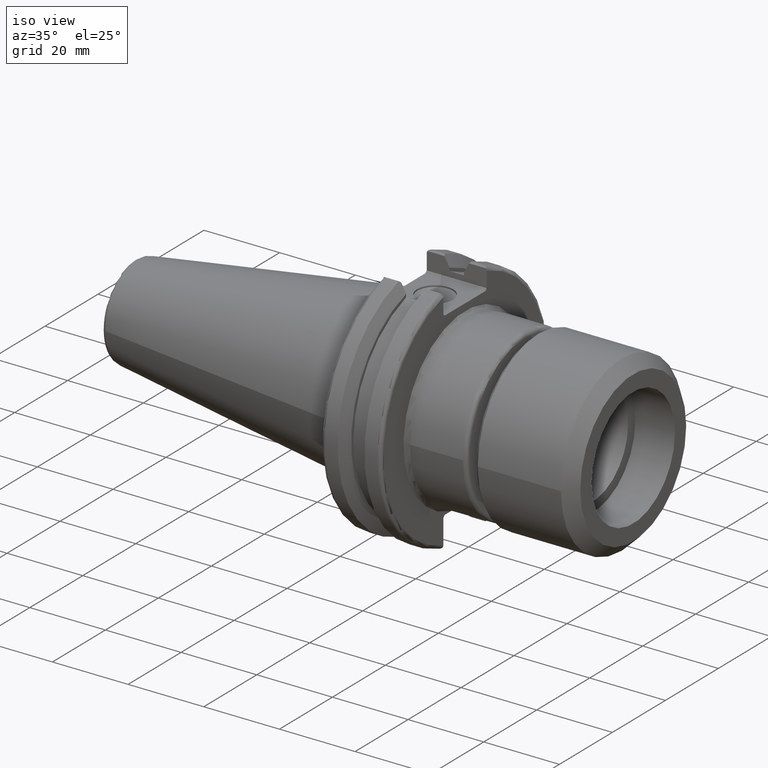
[diagram: clean part render]
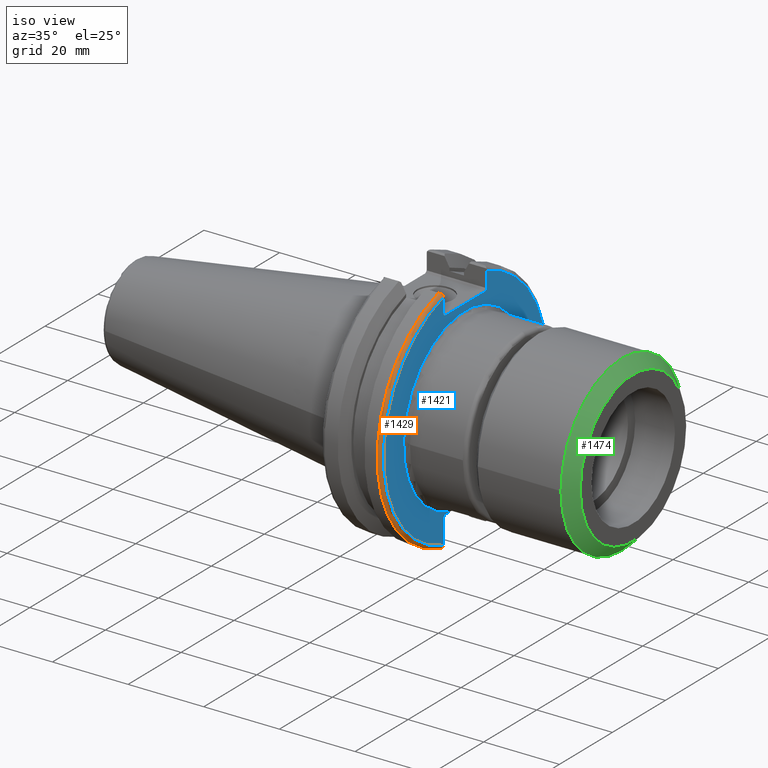
[diagram: same view with three faces highlighted in distinct colors, each labeled with its STEP entity id]
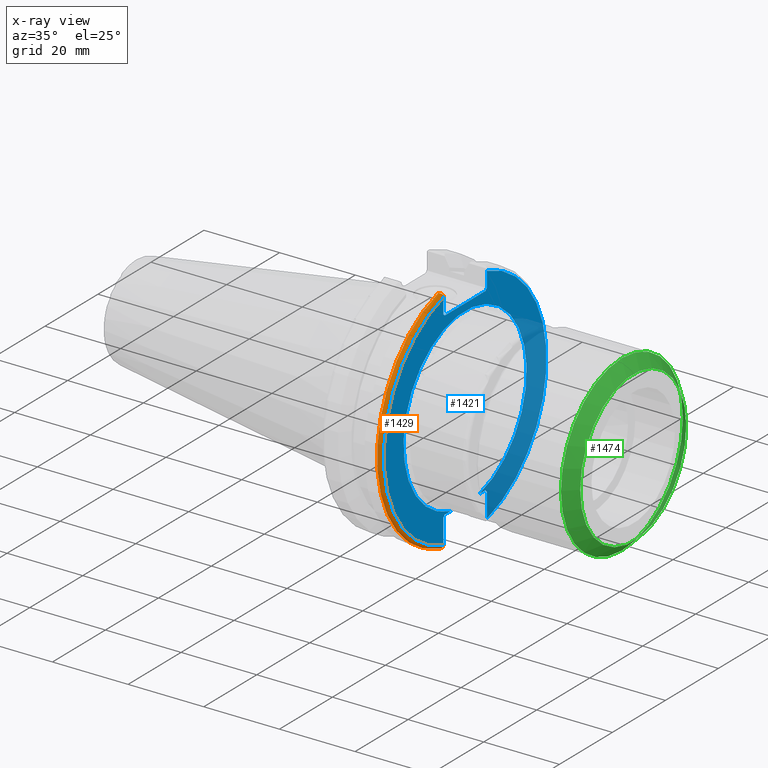
[diagram: x-ray of the same camera — body ghosted, the three highlighted faces saturated]
A machine part, iso view with three faces highlighted in distinct colors.
The next image is the same camera in x-ray (body ghosted, the three faces saturated) — at least one of them is partly hidden behind the body in this view.
Their STEP definitions:

[orange] entity #1429 — the highlighted toroidal blend (fillet) surface has major radius 30.75 mm and minor (blend) radius 1 mm.
#284=B_SPLINE_CURVE_WITH_KNOTS('',3,(#2402,#2403,#2404,#2405,#2406,#2407),
 .UNSPECIFIED.,.F.,.F.,(4,2,4),(0.097738363091569,0.112311108149119,0.150804350305566),
 .UNSPECIFIED.);
#285=B_SPLINE_CURVE_WITH_KNOTS('',3,(#2409,#2410,#2411,#2412,#2413,#2414),
 .UNSPECIFIED.,.F.,.F.,(4,2,4),(0.452741154494497,0.491581665024872,0.505824174364156),
 .UNSPECIFIED.);
#286=B_SPLINE_CURVE_WITH_KNOTS('',3,(#2416,#2417,#2418,#2419,#2420,#2421,
#2422,#2423),.UNSPECIFIED.,.F.,.F.,(4,2,2,4),(-0.104180282751877,-0.0729784742461446,
-0.0343524753874984,0.),.UNSPECIFIED.);
#287=B_SPLINE_CURVE_WITH_KNOTS('',3,(#2426,#2427,#2428,#2429,#2430,#2431,
#2432,#2433),.UNSPECIFIED.,.F.,.F.,(4,2,2,4),(0.,0.0343524753874978,0.0729784742461449,
0.104180282751877),.UNSPECIFIED.);
#538=FACE_OUTER_BOUND('',#617,.T.);
#617=EDGE_LOOP('',(#1161,#1162,#1163,#1164,#1165,#1166));
#695=CIRCLE('',#1628,30.75);
#705=CIRCLE('',#1646,31.75);
#772=VERTEX_POINT('',#2284);
#773=VERTEX_POINT('',#2286);
#805=VERTEX_POINT('',#2401);
#806=VERTEX_POINT('',#2408);
#807=VERTEX_POINT('',#2415);
#808=VERTEX_POINT('',#2424);
#901=EDGE_CURVE('',#773,#772,#695,.T.);
#941=EDGE_CURVE('',#805,#773,#284,.T.);
#942=EDGE_CURVE('',#772,#806,#285,.T.);
#943=EDGE_CURVE('',#806,#807,#286,.T.);
#944=EDGE_CURVE('',#807,#808,#705,.T.);
#945=EDGE_CURVE('',#808,#805,#287,.T.);
#1161=ORIENTED_EDGE('',*,*,#941,.T.);
#1162=ORIENTED_EDGE('',*,*,#901,.T.);
#1163=ORIENTED_EDGE('',*,*,#942,.T.);
#1164=ORIENTED_EDGE('',*,*,#943,.T.);
#1165=ORIENTED_EDGE('',*,*,#944,.T.);
#1166=ORIENTED_EDGE('',*,*,#945,.T.);
#1402=TOROIDAL_SURFACE('',#1645,30.75,1.);
#1429=ADVANCED_FACE('',(#538),#1402,.T.);
#1628=AXIS2_PLACEMENT_3D('',#2287,#1858,#1859);
#1645=AXIS2_PLACEMENT_3D('',#2400,#1914,#1915);
#1646=AXIS2_PLACEMENT_3D('',#2425,#1916,#1917);
#1858=DIRECTION('center_axis',(-1.,0.,0.));
#1859=DIRECTION('ref_axis',(0.,-1.,1.60812264967664E-16));
#1914=DIRECTION('center_axis',(1.,0.,0.));
#1915=DIRECTION('ref_axis',(0.,0.,-1.));
#1916=DIRECTION('center_axis',(1.,0.,0.));
#1917=DIRECTION('ref_axis',(0.,-1.,1.60812264967664E-16));
#2284=CARTESIAN_POINT('',(19.05,-8.19,29.6392712461019));
#2286=CARTESIAN_POINT('',(19.05,-8.19,-29.6392712461019));
#2287=CARTESIAN_POINT('Origin',(19.05,0.,0.));
#2400=CARTESIAN_POINT('Origin',(18.05,0.,0.));
#2401=CARTESIAN_POINT('',(18.9058722749097,-8.19,-30.1755016258903));
#2402=CARTESIAN_POINT('Ctrl Pts',(18.9058722749097,-8.19,-30.1755016258903));
#2403=CARTESIAN_POINT('Ctrl Pts',(18.9324477233044,-8.19,-30.1299319366157));
#2404=CARTESIAN_POINT('Ctrl Pts',(18.9550700364447,-8.19,-30.0829389905409));
#2405=CARTESIAN_POINT('Ctrl Pts',(19.0210043632013,-8.19,-29.9188002007263));
#2406=CARTESIAN_POINT('Ctrl Pts',(19.05,-8.19,-29.76758205329));
#2407=CARTESIAN_POINT('Ctrl Pts',(19.05,-8.19,-29.6392712461019));
#2408=CARTESIAN_POINT('',(18.9058722749097,-8.19,30.1755016258903));
#2409=CARTESIAN_POINT('Ctrl Pts',(19.05,-8.19,29.6392712461019));
#2410=CARTESIAN_POINT('Ctrl Pts',(19.05,-8.19,29.7687396145364));
#2411=CARTESIAN_POINT('Ctrl Pts',(19.020485567083,-8.19,29.9212724384851));
#2412=CARTESIAN_POINT('Ctrl Pts',(18.9539643471756,-8.19,30.0852355256475));
#2413=CARTESIAN_POINT('Ctrl Pts',(18.9318163728133,-8.19,30.131014531546));
#2414=CARTESIAN_POINT('Ctrl Pts',(18.9058722749097,-8.19,30.1755016258903));
#2415=CARTESIAN_POINT('',(18.05,-8.67204822802685,30.5427254764662));
#2416=CARTESIAN_POINT('Ctrl Pts',(18.9058722749097,-8.19,30.1755016258903));
#2417=CARTESIAN_POINT('Ctrl Pts',(18.8574463042989,-8.2703682833078,30.2367261024977));
#2418=CARTESIAN_POINT('Ctrl Pts',(18.7926702662319,-8.34909446036477,30.2966996242308));
#2419=CARTESIAN_POINT('Ctrl Pts',(18.6396724190507,-8.48862804755884,30.4029961692546));
#2420=CARTESIAN_POINT('Ctrl Pts',(18.5184414294771,-8.56482138642532,30.4610401774263));
#2421=CARTESIAN_POINT('Ctrl Pts',(18.2983170433775,-8.6471881193939,30.5237870709558));
#2422=CARTESIAN_POINT('Ctrl Pts',(18.1645082512917,-8.67204822802685,30.5427254764662));
#2423=CARTESIAN_POINT('Ctrl Pts',(18.05,-8.67204822802685,30.5427254764662));
#2424=CARTESIAN_POINT('',(18.05,-8.67204822802686,-30.5427254764662));
#2425=CARTESIAN_POINT('Origin',(18.05,0.,0.));
#2426=CARTESIAN_POINT('Ctrl Pts',(18.05,-8.67204822802685,-30.5427254764662));
#2427=CARTESIAN_POINT('Ctrl Pts',(18.1645082512917,-8.67204822802685,-30.5427254764662));
#2428=CARTESIAN_POINT('Ctrl Pts',(18.2983170433775,-8.6471881193939,-30.5237870709558));
#2429=CARTESIAN_POINT('Ctrl Pts',(18.5184414294771,-8.56482138642532,-30.4610401774263));
#2430=CARTESIAN_POINT('Ctrl Pts',(18.6396724190507,-8.48862804755883,-30.4029961692546));
#2431=CARTESIAN_POINT('Ctrl Pts',(18.7926702662319,-8.34909446036477,-30.2966996242308));
#2432=CARTESIAN_POINT('Ctrl Pts',(18.8574463042989,-8.2703682833078,-30.2367261024977));
#2433=CARTESIAN_POINT('Ctrl Pts',(18.9058722749097,-8.19,-30.1755016258903));

[blue] entity #1421 — the highlighted planar face has unit normal (1, 0, 0).
#312=PLANE('',#1626);
#349=LINE('',#2269,#427);
#350=LINE('',#2271,#428);
#351=LINE('',#2273,#429);
#352=LINE('',#2277,#430);
#353=LINE('',#2279,#431);
#354=LINE('',#2281,#432);
#355=LINE('',#2283,#433);
#356=LINE('',#2285,#434);
#357=LINE('',#2289,#435);
#358=LINE('',#2291,#436);
#359=LINE('',#2292,#437);
#427=VECTOR('',#1848,10.);
#428=VECTOR('',#1849,10.);
#429=VECTOR('',#1850,10.);
#430=VECTOR('',#1853,10.);
#431=VECTOR('',#1854,10.);
#432=VECTOR('',#1855,10.);
#433=VECTOR('',#1856,10.);
#434=VECTOR('',#1857,10.);
#435=VECTOR('',#1860,10.);
#436=VECTOR('',#1861,10.);
#437=VECTOR('',#1862,10.);
#530=FACE_OUTER_BOUND('',#608,.T.);
#608=EDGE_LOOP('',(#1097,#1098,#1099,#1100,#1101,#1102,#1103,#1104,#1105,
#1106,#1107,#1108,#1109,#1110));
#681=CIRCLE('',#1602,23.225);
#694=CIRCLE('',#1627,30.75);
#695=CIRCLE('',#1628,30.75);
#750=VERTEX_POINT('',#2210);
#751=VERTEX_POINT('',#2217);
#764=VERTEX_POINT('',#2268);
#765=VERTEX_POINT('',#2270);
#766=VERTEX_POINT('',#2272);
#767=VERTEX_POINT('',#2274);
#768=VERTEX_POINT('',#2276);
#769=VERTEX_POINT('',#2278);
#770=VERTEX_POINT('',#2280);
#771=VERTEX_POINT('',#2282);
#772=VERTEX_POINT('',#2284);
#773=VERTEX_POINT('',#2286);
#774=VERTEX_POINT('',#2288);
#775=VERTEX_POINT('',#2290);
#871=EDGE_CURVE('',#750,#751,#681,.T.);
#892=EDGE_CURVE('',#750,#764,#349,.T.);
#893=EDGE_CURVE('',#765,#764,#350,.T.);
#894=EDGE_CURVE('',#765,#766,#351,.T.);
#895=EDGE_CURVE('',#767,#766,#694,.T.);
#896=EDGE_CURVE('',#767,#768,#352,.T.);
#897=EDGE_CURVE('',#769,#768,#353,.T.);
#898=EDGE_CURVE('',#769,#770,#354,.T.);
#899=EDGE_CURVE('',#771,#770,#355,.T.);
#900=EDGE_CURVE('',#771,#772,#356,.T.);
#901=EDGE_CURVE('',#773,#772,#695,.T.);
#902=EDGE_CURVE('',#773,#774,#357,.T.);
#903=EDGE_CURVE('',#775,#774,#358,.T.);
#904=EDGE_CURVE('',#775,#751,#359,.T.);
#1097=ORIENTED_EDGE('',*,*,#871,.F.);
#1098=ORIENTED_EDGE('',*,*,#892,.T.);
#1099=ORIENTED_EDGE('',*,*,#893,.F.);
#1100=ORIENTED_EDGE('',*,*,#894,.T.);
#1101=ORIENTED_EDGE('',*,*,#895,.F.);
#1102=ORIENTED_EDGE('',*,*,#896,.T.);
#1103=ORIENTED_EDGE('',*,*,#897,.F.);
#1104=ORIENTED_EDGE('',*,*,#898,.T.);
#1105=ORIENTED_EDGE('',*,*,#899,.F.);
#1106=ORIENTED_EDGE('',*,*,#900,.T.);
#1107=ORIENTED_EDGE('',*,*,#901,.F.);
#1108=ORIENTED_EDGE('',*,*,#902,.T.);
#1109=ORIENTED_EDGE('',*,*,#903,.F.);
#1110=ORIENTED_EDGE('',*,*,#904,.T.);
#1421=ADVANCED_FACE('',(#530),#312,.T.);
#1602=AXIS2_PLACEMENT_3D('',#2218,#1791,#1792);
#1626=AXIS2_PLACEMENT_3D('',#2267,#1846,#1847);
#1627=AXIS2_PLACEMENT_3D('',#2275,#1851,#1852);
#1628=AXIS2_PLACEMENT_3D('',#2287,#1858,#1859);
#1791=DIRECTION('center_axis',(1.,0.,0.));
#1792=DIRECTION('ref_axis',(0.,-1.,-1.22464679914735E-16));
#1846=DIRECTION('center_axis',(1.,0.,0.));
#1847=DIRECTION('ref_axis',(0.,0.,-1.));
#1848=DIRECTION('',(0.,1.,0.));
#1849=DIRECTION('',(0.,-0.707106781186549,0.707106781186546));
#1850=DIRECTION('',(0.,0.,-1.));
#1851=DIRECTION('center_axis',(-1.,0.,0.));
#1852=DIRECTION('ref_axis',(0.,1.,-6.12323399573677E-17));
#1853=DIRECTION('',(0.,0.,-1.));
#1854=DIRECTION('',(0.,0.707106781186549,0.707106781186546));
#1855=DIRECTION('',(0.,-1.,0.));
#1856=DIRECTION('',(0.,0.70710678118655,-0.707106781186545));
#1857=DIRECTION('',(0.,0.,1.));
#1858=DIRECTION('center_axis',(-1.,0.,0.));
#1859=DIRECTION('ref_axis',(0.,-1.,1.60812264967664E-16));
#1860=DIRECTION('',(0.,0.,1.));
#1861=DIRECTION('',(0.,-0.707106781186549,-0.707106781186546));
#1862=DIRECTION('',(0.,1.,0.));
#2210=CARTESIAN_POINT('',(19.05,5.35169365715191,-22.6));
#2217=CARTESIAN_POINT('',(19.05,-5.35169365715191,-22.6));
#2218=CARTESIAN_POINT('Origin',(19.05,0.,0.));
#2267=CARTESIAN_POINT('Origin',(19.05,0.,0.));
#2268=CARTESIAN_POINT('',(19.05,7.69,-22.6));
#2269=CARTESIAN_POINT('',(19.05,-2.77555756156289E-16,-22.6));
#2270=CARTESIAN_POINT('',(19.05,8.19,-23.1));
#2271=CARTESIAN_POINT('',(19.05,0.242499999999989,-15.1525));
#2272=CARTESIAN_POINT('',(19.05,8.19,-29.6392712461019));
#2273=CARTESIAN_POINT('',(19.05,8.19,-11.3));
#2274=CARTESIAN_POINT('',(19.05,8.19,29.6392712461019));
#2275=CARTESIAN_POINT('Origin',(19.05,0.,0.));
#2276=CARTESIAN_POINT('',(19.05,8.19,25.5));
#2277=CARTESIAN_POINT('',(19.05,8.19,12.5));
#2278=CARTESIAN_POINT('',(19.05,7.69,25.));
#2279=CARTESIAN_POINT('',(19.05,-0.35750000000001,16.9525));
#2280=CARTESIAN_POINT('',(19.05,-7.69,25.));
#2281=CARTESIAN_POINT('',(19.05,0.,25.));
#2282=CARTESIAN_POINT('',(19.05,-8.19,25.5));
#2283=CARTESIAN_POINT('',(19.05,0.357500000000014,16.9525));
#2284=CARTESIAN_POINT('',(19.05,-8.19,29.6392712461019));
#2285=CARTESIAN_POINT('',(19.05,-8.19,12.5));
#2286=CARTESIAN_POINT('',(19.05,-8.19,-29.6392712461019));
#2287=CARTESIAN_POINT('Origin',(19.05,0.,0.));
#2288=CARTESIAN_POINT('',(19.05,-8.19,-23.1));
#2289=CARTESIAN_POINT('',(19.05,-8.19,-11.3));
#2290=CARTESIAN_POINT('',(19.05,-7.69,-22.6));
#2291=CARTESIAN_POINT('',(19.05,-0.242499999999991,-15.1525));
#2292=CARTESIAN_POINT('',(19.05,-2.77555756156289E-16,-22.6));

[green] entity #1474 — the highlighted conical surface has half-angle 45 deg.
#275=CONICAL_SURFACE('',#1731,21.5,0.785398163397446);
#416=LINE('',#2813,#494);
#494=VECTOR('',#2127,21.5);
#583=FACE_OUTER_BOUND('',#666,.T.);
#666=EDGE_LOOP('',(#1378,#1379,#1380,#1381,#1382));
#737=CIRCLE('',#1732,20.);
#738=CIRCLE('',#1733,23.);
#739=CIRCLE('',#1734,23.);
#855=VERTEX_POINT('',#2810);
#856=VERTEX_POINT('',#2812);
#857=VERTEX_POINT('',#2814);
#1031=EDGE_CURVE('',#855,#855,#737,.T.);
#1032=EDGE_CURVE('',#855,#856,#416,.T.);
#1033=EDGE_CURVE('',#856,#857,#738,.T.);
#1034=EDGE_CURVE('',#857,#856,#739,.T.);
#1378=ORIENTED_EDGE('',*,*,#1031,.T.);
#1379=ORIENTED_EDGE('',*,*,#1032,.T.);
#1380=ORIENTED_EDGE('',*,*,#1033,.T.);
#1381=ORIENTED_EDGE('',*,*,#1034,.T.);
#1382=ORIENTED_EDGE('',*,*,#1032,.F.);
#1474=ADVANCED_FACE('',(#583),#275,.T.);
#1731=AXIS2_PLACEMENT_3D('',#2809,#2123,#2124);
#1732=AXIS2_PLACEMENT_3D('',#2811,#2125,#2126);
#1733=AXIS2_PLACEMENT_3D('',#2815,#2128,#2129);
#1734=AXIS2_PLACEMENT_3D('',#2816,#2130,#2131);
#2123=DIRECTION('center_axis',(-1.,0.,0.));
#2124=DIRECTION('ref_axis',(0.,-1.,0.));
#2125=DIRECTION('center_axis',(-1.,0.,0.));
#2126=DIRECTION('ref_axis',(0.,-1.,0.));
#2127=DIRECTION('',(-0.707106781186549,0.707106781186546,8.65956056235491E-17));
#2128=DIRECTION('center_axis',(1.,0.,0.));
#2129=DIRECTION('ref_axis',(0.,-1.,0.));
#2130=DIRECTION('center_axis',(1.,0.,0.));
#2131=DIRECTION('ref_axis',(0.,-1.,0.));
#2809=CARTESIAN_POINT('Origin',(24.5,0.,0.));
#2810=CARTESIAN_POINT('',(26.,20.,-2.44929359829471E-15));
#2811=CARTESIAN_POINT('Origin',(26.,0.,0.));
#2812=CARTESIAN_POINT('',(23.,23.,2.81668763803891E-15));
#2813=CARTESIAN_POINT('',(24.5,21.5,2.63299061816681E-15));
#2814=CARTESIAN_POINT('',(23.,-23.,-2.81668763803891E-15));
#2815=CARTESIAN_POINT('Origin',(23.,0.,0.));
#2816=CARTESIAN_POINT('Origin',(23.,0.,0.));